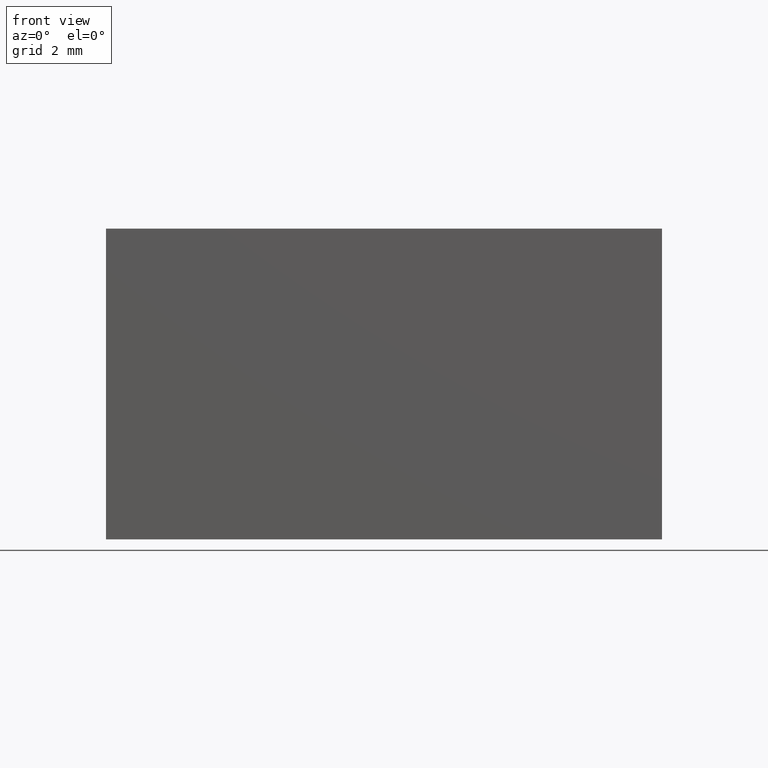
[diagram: clean part render]
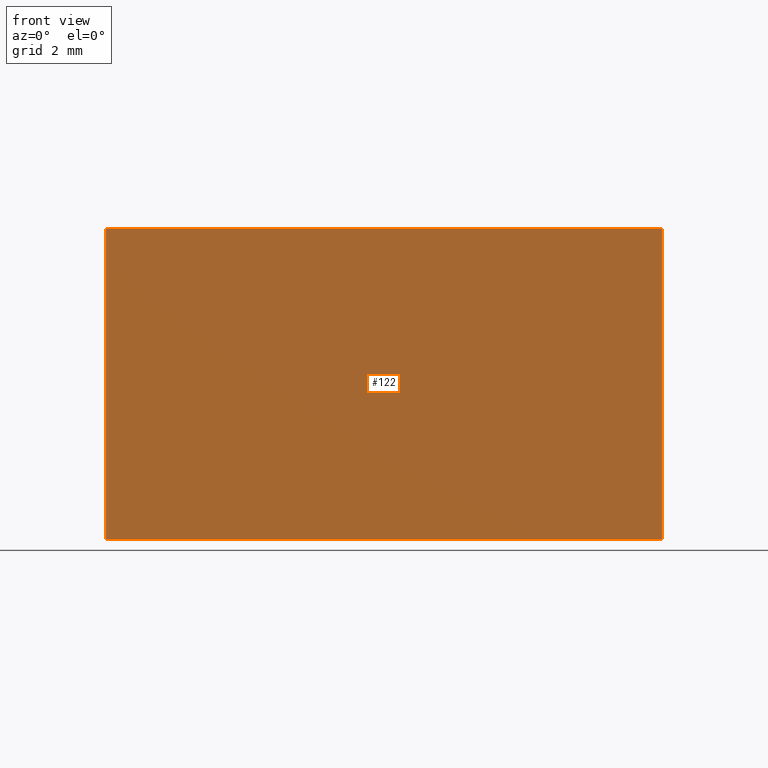
[diagram: same view with one face highlighted and labeled with its STEP entity id]
A machine part, front view. The second image highlights one B-rep face of the part: STEP entity #122.
In plain terms, the highlighted planar face has unit normal (0, -1, 0).
Its self-contained STEP definition (entity closure, byte-faithful):
#16=FACE_OUTER_BOUND('',#23,.T.);
#23=EDGE_LOOP('',(#89,#90,#91,#92));
#31=LINE('',#197,#46);
#34=LINE('',#204,#49);
#35=LINE('',#205,#50);
#36=LINE('',#206,#51);
#46=VECTOR('',#164,10.);
#49=VECTOR('',#169,10.);
#50=VECTOR('',#170,10.);
#51=VECTOR('',#171,10.);
#61=VERTEX_POINT('',#194);
#62=VERTEX_POINT('',#196);
#64=VERTEX_POINT('',#202);
#65=VERTEX_POINT('',#203);
#71=EDGE_CURVE('',#62,#61,#31,.T.);
#74=EDGE_CURVE('',#64,#65,#34,.T.);
#75=EDGE_CURVE('',#65,#62,#35,.T.);
#76=EDGE_CURVE('',#64,#61,#36,.T.);
#89=ORIENTED_EDGE('',*,*,#74,.T.);
#90=ORIENTED_EDGE('',*,*,#75,.T.);
#91=ORIENTED_EDGE('',*,*,#71,.T.);
#92=ORIENTED_EDGE('',*,*,#76,.F.);
#115=PLANE('',#152);
#122=ADVANCED_FACE('',(#16),#115,.T.);
#152=AXIS2_PLACEMENT_3D('',#201,#167,#168);
#164=DIRECTION('',(1.,1.24491397560035E-16,0.));
#167=DIRECTION('center_axis',(1.24491397560035E-16,-1.,0.));
#168=DIRECTION('ref_axis',(0.,0.,-1.));
#169=DIRECTION('',(-1.,-1.24491397560035E-16,0.));
#170=DIRECTION('',(0.,0.,-1.));
#171=DIRECTION('',(0.,0.,-1.));
#194=CARTESIAN_POINT('',(0.,1.83879800236431E-15,-4.75));
#196=CARTESIAN_POINT('',(-17.,-2.77555756156289E-16,-4.75));
#197=CARTESIAN_POINT('',(0.,1.83879800236431E-15,-4.75));
#201=CARTESIAN_POINT('Origin',(0.,1.83879800236431E-15,0.));
#202=CARTESIAN_POINT('',(0.,1.83879800236431E-15,4.75));
#203=CARTESIAN_POINT('',(-17.,-2.77555756156289E-16,4.75));
#204=CARTESIAN_POINT('',(0.,1.83879800236431E-15,4.75));
#205=CARTESIAN_POINT('',(-17.,-2.77555756156289E-16,0.));
#206=CARTESIAN_POINT('',(0.,1.83879800236431E-15,0.));